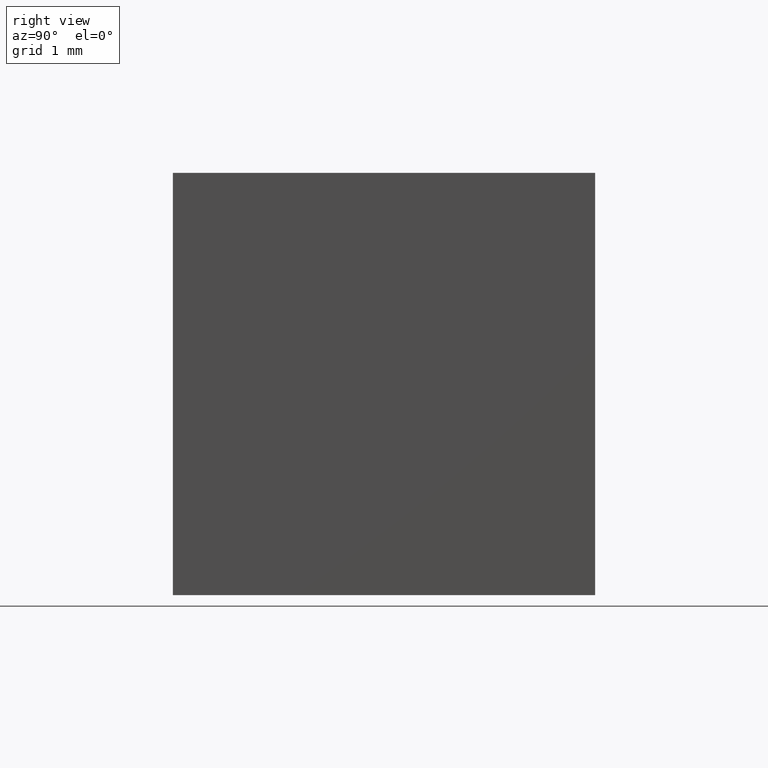
[diagram: clean part render]
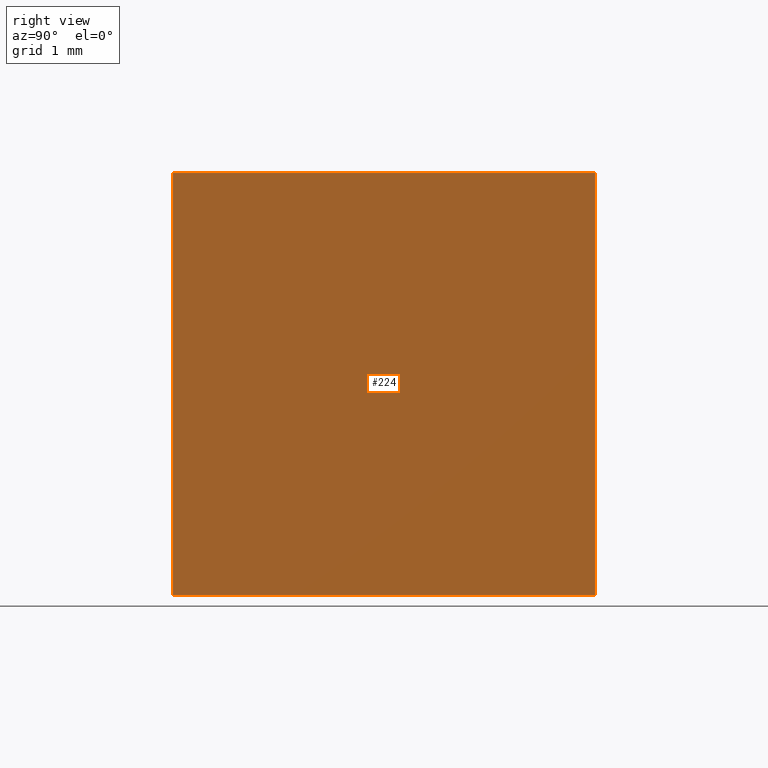
[diagram: same view with one face highlighted and labeled with its STEP entity id]
A machine part, right view. The second image highlights one B-rep face of the part: STEP entity #224.
In plain terms, the highlighted planar face has unit normal (-1, 0, 0).
Its self-contained STEP definition (entity closure, byte-faithful):
#7 = CARTESIAN_POINT ( 'NONE',  ( 0.0000000000000000000, 5.000000000000000000, 0.0000000000000000000 ) ) ;
#10 = CARTESIAN_POINT ( 'NONE',  ( 0.0000000000000000000, 5.000000000000000000, -5.000000000000000000 ) ) ;
#17 = VERTEX_POINT ( 'NONE', #10 ) ;
#31 = DIRECTION ( 'NONE',  ( -0.0000000000000000000, -1.000000000000000000, -0.0000000000000000000 ) ) ;
#33 = VECTOR ( 'NONE', #31, 1000.000000000000000 ) ;
#45 = ORIENTED_EDGE ( 'NONE', *, *, #191, .F. ) ;
#48 = CARTESIAN_POINT ( 'NONE',  ( 0.0000000000000000000, 0.0000000000000000000, 0.0000000000000000000 ) ) ;
#50 = CARTESIAN_POINT ( 'NONE',  ( 0.0000000000000000000, 5.000000000000000000, 0.0000000000000000000 ) ) ;
#52 = DIRECTION ( 'NONE',  ( -0.0000000000000000000, -1.000000000000000000, -0.0000000000000000000 ) ) ;
#55 = AXIS2_PLACEMENT_3D ( 'NONE', #7, #263, #99 ) ;
#75 = CARTESIAN_POINT ( 'NONE',  ( 0.0000000000000000000, 5.000000000000000000, 0.0000000000000000000 ) ) ;
#77 = LINE ( 'NONE', #244, #90 ) ;
#90 = VECTOR ( 'NONE', #52, 1000.000000000000000 ) ;
#91 = VECTOR ( 'NONE', #192, 1000.000000000000000 ) ;
#96 = LINE ( 'NONE', #188, #33 ) ;
#99 = DIRECTION ( 'NONE',  ( 0.0000000000000000000, 0.0000000000000000000, 1.000000000000000000 ) ) ;
#107 = CARTESIAN_POINT ( 'NONE',  ( 0.0000000000000000000, 0.0000000000000000000, 0.0000000000000000000 ) ) ;
#114 = EDGE_LOOP ( 'NONE', ( #132, #45, #230, #198 ) ) ;
#132 = ORIENTED_EDGE ( 'NONE', *, *, #286, .T. ) ;
#164 = EDGE_CURVE ( 'NONE', #165, #17, #269, .T. ) ;
#165 = VERTEX_POINT ( 'NONE', #75 ) ;
#177 = VERTEX_POINT ( 'NONE', #48 ) ;
#187 = VERTEX_POINT ( 'NONE', #288 ) ;
#188 = CARTESIAN_POINT ( 'NONE',  ( 0.0000000000000000000, 5.000000000000000000, -5.000000000000000000 ) ) ;
#191 = EDGE_CURVE ( 'NONE', #17, #187, #96, .T. ) ;
#192 = DIRECTION ( 'NONE',  ( 0.0000000000000000000, 0.0000000000000000000, -1.000000000000000000 ) ) ;
#198 = ORIENTED_EDGE ( 'NONE', *, *, #278, .T. ) ;
#215 = FACE_OUTER_BOUND ( 'NONE', #114, .T. ) ;
#224 = ADVANCED_FACE ( 'NONE', ( #215 ), #285, .F. ) ;
#230 = ORIENTED_EDGE ( 'NONE', *, *, #164, .F. ) ;
#244 = CARTESIAN_POINT ( 'NONE',  ( 0.0000000000000000000, 5.000000000000000000, 0.0000000000000000000 ) ) ;
#259 = VECTOR ( 'NONE', #267, 1000.000000000000000 ) ;
#263 = DIRECTION ( 'NONE',  ( -1.000000000000000000, 0.0000000000000000000, 0.0000000000000000000 ) ) ;
#266 = LINE ( 'NONE', #107, #259 ) ;
#267 = DIRECTION ( 'NONE',  ( 0.0000000000000000000, 0.0000000000000000000, -1.000000000000000000 ) ) ;
#269 = LINE ( 'NONE', #50, #91 ) ;
#278 = EDGE_CURVE ( 'NONE', #165, #177, #77, .T. ) ;
#285 = PLANE ( 'NONE',  #55 ) ;
#286 = EDGE_CURVE ( 'NONE', #177, #187, #266, .T. ) ;
#288 = CARTESIAN_POINT ( 'NONE',  ( 0.0000000000000000000, 0.0000000000000000000, -5.000000000000000000 ) ) ;